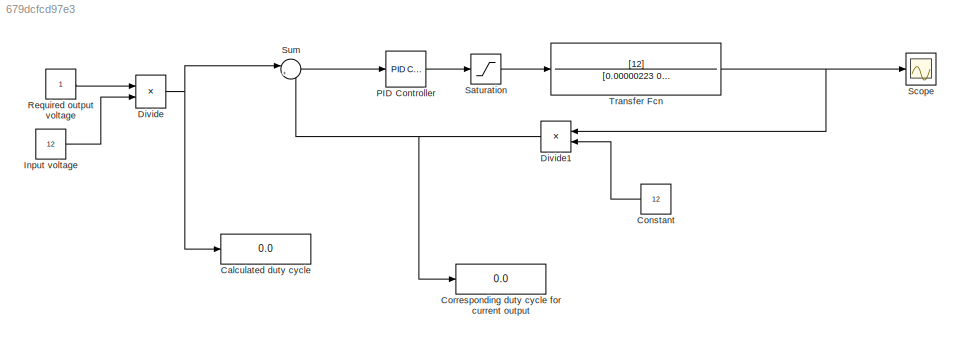
MODEL slx_679dcfcd97e3
KIND model
CONFIG AbsTol = auto
CONFIG EnableMultiTasking = off
CONFIG FixedStep = auto
CONFIG MaxStep = auto
CONFIG MinStep = auto
CONFIG RelTol = 1e-3
CONFIG SampleTimeConstraint = Unconstrained
CONFIG SolverName = VariableStepAuto
CONFIG StartTime = 0.0
CONFIG StopTime = 1
BLOCK [Display] Calculated duty cycle
  Decimation = 1
BLOCK [Constant] Constant
  NameLocation = top
  Value = 12
BLOCK [Display] Corresponding duty cycle for current output
  Decimation = 1
BLOCK [Product] Divide
  Inputs = */
  RndMeth = Zero
  SaturateOnIntegerOverflow = on
BLOCK [Product] Divide1
  Inputs = */
  NameLocation = top
BLOCK [Constant] Input voltage
  Value = 12
BLOCK [Reference] PID Controller  REF=slpidlib/PID Controller
  LibrarySourceBlock = simulink/Continuous/PID Controller
  SourceBlock = slpidlib/PID Controller
  SourceType = PID 1dof
BLOCK [Constant] Required output voltage
BLOCK [Saturate] Saturation
  LowerLimit = 0
  UpperLimit = 1
BLOCK [Scope] Scope
  Floating = off
  NumInputPorts = 1
  ScopeSpecificationString = Simulink.scopes.TimeScopeBlockCfg('CurrentConfiguration', extmgr.ConfigurationSet(extmgr.Configuration('Core','General UI',true),extmgr.Configuration('Core','Source UI',true),extmgr.Configuration('Sources','WiredSimulink',true),extmgr.Configuration('Visuals','Time Domain',true,'SerializedDisplays',{struct('MinYLimReal','3.00000','MaxYLimReal','5.00000','YLabelReal','','MinYLimMag','3.00000','MaxYL...<+1397ch>
BLOCK [Sum] Sum
  Inputs = |+-
BLOCK [TransferFcn] Transfer Fcn
  Denominator = [0.00000223 0.0895 1]
  Numerator = [12]
LINE Constant:1 -> Divide1:2
NET Divide1:1 -> Corresponding duty cycle for current output:1, Sum:2
NET Divide:1 -> Calculated duty cycle:1, Sum:1
LINE Input voltage:1 -> Divide:2
LINE PID Controller:1 -> Saturation:1
LINE Required output voltage:1 -> Divide:1
LINE Saturation:1 -> Transfer Fcn:1
LINE Sum:1 -> PID Controller:1
NET Transfer Fcn:1 -> Divide1:1, Scope:1
note: NET lines group one-source signal fan-out (src -> all destinations, sorted); 1:1 wires keep LINE
